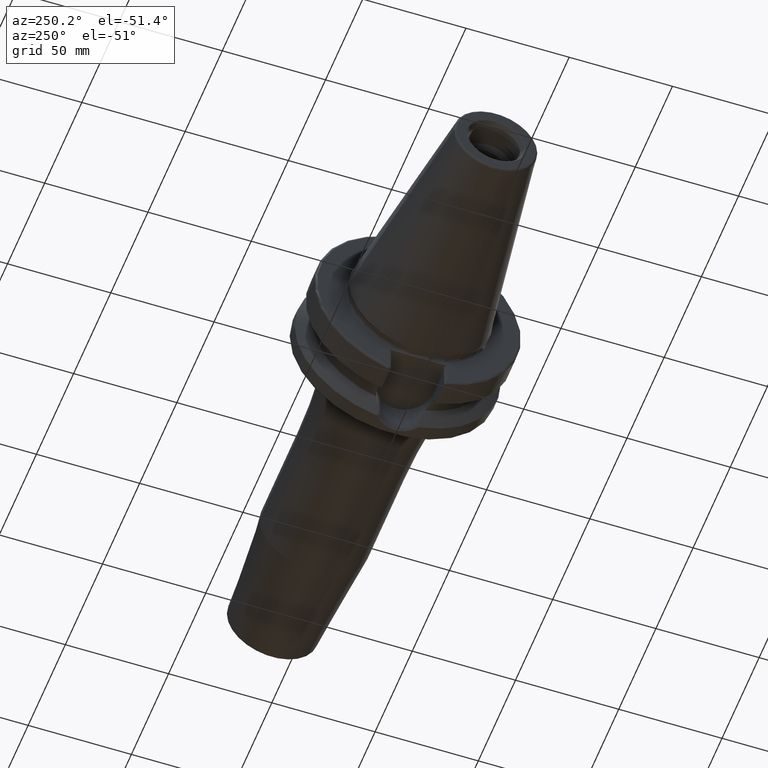
[diagram: clean part render]
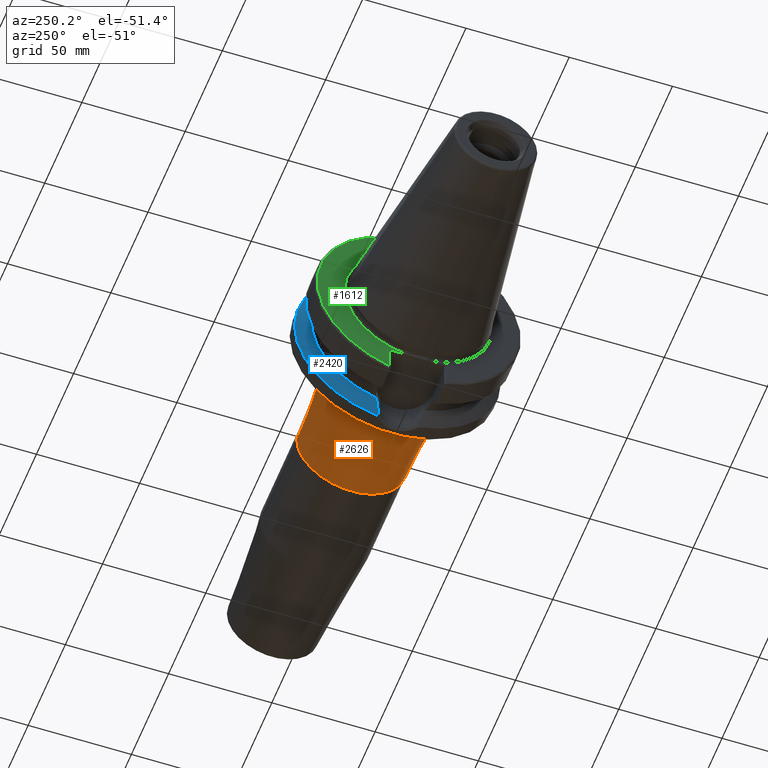
[diagram: same view with three faces highlighted in distinct colors, each labeled with its STEP entity id]
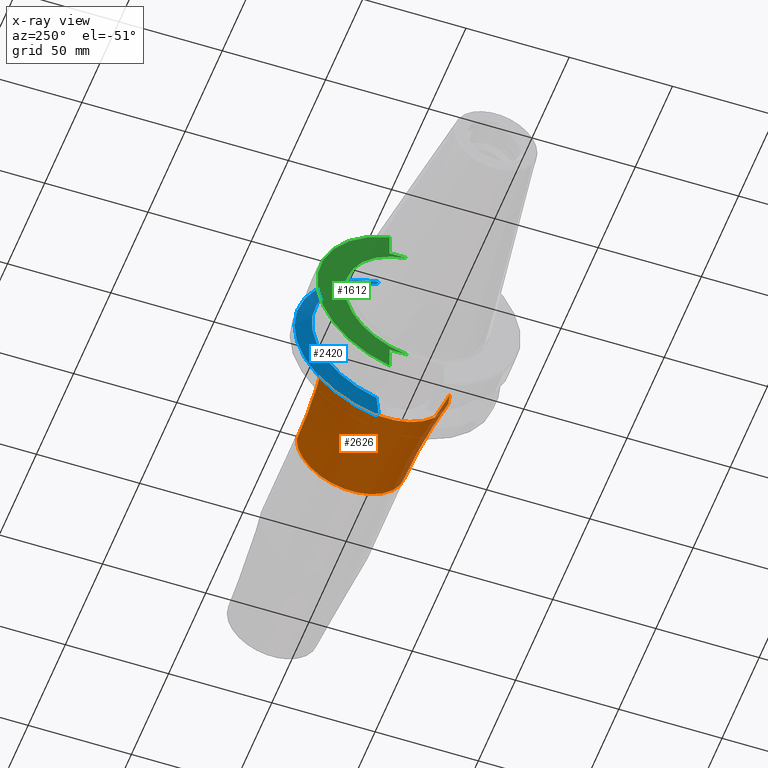
[diagram: x-ray of the same camera — body ghosted, the three highlighted faces saturated]
A machine part, auxiliary view with three faces highlighted in distinct colors.
The next image is the same camera in x-ray (body ghosted, the three faces saturated) — at least one of them is partly hidden behind the body in this view.
Their STEP definitions:

[orange] entity #2626 — the highlighted toroidal blend (fillet) surface has major radius 326.5 mm and minor (blend) radius 300 mm.
#859=CARTESIAN_POINT('',(4.471232876712E1,0.E0,0.E0));
#860=DIRECTION('',(1.E0,0.E0,0.E0));
#861=DIRECTION('',(0.E0,-1.E0,0.E0));
#862=AXIS2_PLACEMENT_3D('',#859,#860,#861);
#864=CARTESIAN_POINT('',(9.3E1,-3.265E2,-7.996943598432E-14));
#865=DIRECTION('',(0.E0,0.E0,1.E0));
#866=DIRECTION('',(0.E0,1.E0,0.E0));
#867=AXIS2_PLACEMENT_3D('',#864,#865,#866);
#869=CARTESIAN_POINT('',(9.3E1,3.265E2,3.998471799216E-14));
#870=DIRECTION('',(0.E0,0.E0,-1.E0));
#871=DIRECTION('',(0.E0,-1.E0,0.E0));
#872=AXIS2_PLACEMENT_3D('',#869,#870,#871);
#874=CARTESIAN_POINT('',(9.3E1,0.E0,0.E0));
#875=DIRECTION('',(1.E0,0.E0,0.E0));
#876=DIRECTION('',(0.E0,-1.E0,0.E0));
#877=AXIS2_PLACEMENT_3D('',#874,#875,#876);
#1435=CARTESIAN_POINT('',(4.471232876712E1,-3.041166722259E1,0.E0));
#1436=CARTESIAN_POINT('',(4.471232876712E1,3.041166722259E1,0.E0));
#1437=VERTEX_POINT('',#1435);
#1438=VERTEX_POINT('',#1436);
#1439=CARTESIAN_POINT('',(9.3E1,2.65E1,0.E0));
#1440=VERTEX_POINT('',#1439);
#1441=CARTESIAN_POINT('',(9.3E1,-2.65E1,0.E0));
#1442=VERTEX_POINT('',#1441);
#2614=CARTESIAN_POINT('',(9.3E1,0.E0,0.E0));
#2615=DIRECTION('',(1.E0,0.E0,0.E0));
#2616=DIRECTION('',(0.E0,-1.E0,0.E0));
#2617=AXIS2_PLACEMENT_3D('',#2614,#2615,#2616);
#2618=TOROIDAL_SURFACE('',#2617,3.265E2,3.E2);
#2619=ORIENTED_EDGE('',*,*,#2579,.F.);
#2620=ORIENTED_EDGE('',*,*,#2609,.F.);
#2622=ORIENTED_EDGE('',*,*,#2621,.T.);
#2623=ORIENTED_EDGE('',*,*,#2605,.T.);
#2624=EDGE_LOOP('',(#2619,#2620,#2622,#2623));
#2625=FACE_OUTER_BOUND('',#2624,.F.);
#2626=ADVANCED_FACE('',(#2625),#2618,.F.);
#863=CIRCLE('',#862,3.041166722259E1);
#868=CIRCLE('',#867,3.E2);
#873=CIRCLE('',#872,3.E2);
#878=CIRCLE('',#877,2.65E1);
#2579=EDGE_CURVE('',#1437,#1438,#863,.T.);
#2605=EDGE_CURVE('',#1440,#1438,#873,.T.);
#2609=EDGE_CURVE('',#1442,#1437,#868,.T.);
#2621=EDGE_CURVE('',#1442,#1440,#878,.T.);

[blue] entity #2420 — the highlighted conical surface has half-angle 60 deg.
#263=CARTESIAN_POINT('',(3.073066823617E1,0.E0,0.E0));
#264=DIRECTION('',(1.E0,0.E0,0.E0));
#265=DIRECTION('',(0.E0,2.049238320147E-1,-9.787779232657E-1));
#266=AXIS2_PLACEMENT_3D('',#263,#264,#265);
#415=CARTESIAN_POINT('',(2.67375E1,1.172273032403E1,-4.144514217760E1));
#416=CARTESIAN_POINT('',(2.717755273188E1,1.152039825981E1,-4.229446795287E1));
#417=CARTESIAN_POINT('',(2.801804260532E1,1.107404406164E1,-4.392046244152E1));
#418=CARTESIAN_POINT('',(2.916093120674E1,1.029757215552E1,-4.613906421021E1));
#419=CARTESIAN_POINT('',(2.984177307163E1,9.721843848552E0,-4.746425084782E1));
#420=CARTESIAN_POINT('',(3.016210355788E1,9.422169090361E0,-4.808834590435E1));
#485=CARTESIAN_POINT('',(3.006745596523E1,9.509830398822E0,4.790396451831E1));
#486=CARTESIAN_POINT('',(2.975376574683E1,9.797465906135E0,4.729293338983E1));
#487=CARTESIAN_POINT('',(2.908879078217E1,1.035010846105E1,4.599889189585E1));
#488=CARTESIAN_POINT('',(2.797778721927E1,1.109635283633E1,4.384252820130E1));
#489=CARTESIAN_POINT('',(2.716331106798E1,1.152694644153E1,4.226698076473E1));
#490=CARTESIAN_POINT('',(2.67375E1,1.172273032403E1,4.144514217760E1));
#758=CARTESIAN_POINT('',(2.67375E1,0.E0,0.E0));
#759=DIRECTION('',(-1.E0,0.E0,0.E0));
#760=DIRECTION('',(0.E0,2.721714149834E-1,9.622487832499E-1));
#761=AXIS2_PLACEMENT_3D('',#758,#759,#760);
#775=CARTESIAN_POINT('',(3.016210355788E1,9.422169090361E0,-4.808834590435E1));
#776=CARTESIAN_POINT('',(3.022394586618E1,9.512142137117E0,-4.817986780383E1));
#777=CARTESIAN_POINT('',(3.034851502566E1,9.692953240337E0,-4.836399151813E1));
#778=CARTESIAN_POINT('',(3.053803725886E1,9.966778365933E0,-4.864343348084E1));
#779=CARTESIAN_POINT('',(3.066616050581E1,1.015105667945E1,-4.883189001679E1));
#780=CARTESIAN_POINT('',(3.073066823617E1,1.024363005283E1,-4.892666143925E1));
#782=CARTESIAN_POINT('',(3.073066823617E1,0.E0,0.E0));
#783=DIRECTION('',(1.E0,0.E0,0.E0));
#784=DIRECTION('',(0.E0,1.E0,0.E0));
#785=AXIS2_PLACEMENT_3D('',#782,#783,#784);
#968=CARTESIAN_POINT('',(3.073066823617E1,1.046765017837E1,4.887922315251E1));
#969=CARTESIAN_POINT('',(3.065516473864E1,1.035946447073E1,4.876865040800E1));
#970=CARTESIAN_POINT('',(3.050537106240E1,1.014427039488E1,4.854898287946E1));
#971=CARTESIAN_POINT('',(3.028429900742E1,9.824990065200E0,4.822389090934E1));
#972=CARTESIAN_POINT('',(3.013933640756E1,9.614493300520E0,4.801011711517E1));
#973=CARTESIAN_POINT('',(3.006745596523E1,9.509830398822E0,4.790396451831E1));
#1228=CARTESIAN_POINT('',(2.67375E1,1.172273032403E1,4.144514217760E1));
#1229=CARTESIAN_POINT('',(2.67375E1,1.172273032403E1,-4.144514217760E1));
#1230=VERTEX_POINT('',#1228);
#1231=VERTEX_POINT('',#1229);
#1244=CARTESIAN_POINT('',(3.073066823617E1,4.99875E1,0.E0));
#1245=CARTESIAN_POINT('',(3.073066823617E1,1.046765017837E1,4.887922315251E1));
#1246=VERTEX_POINT('',#1244);
#1247=VERTEX_POINT('',#1245);
#1258=CARTESIAN_POINT('',(3.073066823617E1,1.024363005283E1,-4.892666143925E1));
#1259=VERTEX_POINT('',#1258);
#1349=VERTEX_POINT('',#485);
#1357=VERTEX_POINT('',#420);
#2403=CARTESIAN_POINT('',(2.873408411809E1,0.E0,0.E0));
#2404=DIRECTION('',(1.E0,0.E0,0.E0));
#2405=DIRECTION('',(0.E0,-1.E0,0.E0));
#2406=AXIS2_PLACEMENT_3D('',#2403,#2404,#2405);
#2407=CONICAL_SURFACE('',#2406,4.652931486589E1,6.E1);
#2408=ORIENTED_EDGE('',*,*,#1929,.T.);
#2409=ORIENTED_EDGE('',*,*,#1904,.T.);
#2411=ORIENTED_EDGE('',*,*,#2410,.T.);
#2412=ORIENTED_EDGE('',*,*,#1785,.T.);
#2414=ORIENTED_EDGE('',*,*,#2413,.T.);
#2416=ORIENTED_EDGE('',*,*,#2415,.T.);
#2417=ORIENTED_EDGE('',*,*,#1992,.T.);
#2418=EDGE_LOOP('',(#2408,#2409,#2411,#2412,#2414,#2416,#2417));
#2419=FACE_OUTER_BOUND('',#2418,.F.);
#2420=ADVANCED_FACE('',(#2419),#2407,.T.);
#267=CIRCLE('',#266,4.99875E1);
#421=B_SPLINE_CURVE_WITH_KNOTS('',3,(#415,#416,#417,#418,#419,#420),
.UNSPECIFIED.,.F.,.F.,(4,1,1,4),(0.E0,3.333333333333E-1,6.666666666667E-1,1.E0),
.UNSPECIFIED.);
#491=B_SPLINE_CURVE_WITH_KNOTS('',3,(#485,#486,#487,#488,#489,#490),
.UNSPECIFIED.,.F.,.F.,(4,1,1,4),(0.E0,3.333333333333E-1,6.666666666667E-1,1.E0),
.UNSPECIFIED.);
#762=CIRCLE('',#761,4.307112973177E1);
#781=B_SPLINE_CURVE_WITH_KNOTS('',3,(#775,#776,#777,#778,#779,#780),
.UNSPECIFIED.,.F.,.F.,(4,1,1,4),(0.E0,3.333333333333E-1,6.666666666667E-1,1.E0),
.UNSPECIFIED.);
#786=CIRCLE('',#785,4.99875E1);
#974=B_SPLINE_CURVE_WITH_KNOTS('',3,(#968,#969,#970,#971,#972,#973),
.UNSPECIFIED.,.F.,.F.,(4,1,1,4),(0.E0,3.333333333333E-1,6.666666666667E-1,1.E0),
.UNSPECIFIED.);
#1785=EDGE_CURVE('',#1259,#1246,#267,.T.);
#1904=EDGE_CURVE('',#1231,#1357,#421,.T.);
#1929=EDGE_CURVE('',#1230,#1231,#762,.T.);
#1992=EDGE_CURVE('',#1349,#1230,#491,.T.);
#2410=EDGE_CURVE('',#1357,#1259,#781,.T.);
#2413=EDGE_CURVE('',#1246,#1247,#786,.T.);
#2415=EDGE_CURVE('',#1247,#1349,#974,.T.);

[green] entity #1612 — the highlighted planar face has unit normal (1, 0, 0).
#96=CARTESIAN_POINT('',(3.E0,0.E0,0.E0));
#97=DIRECTION('',(-1.E0,0.E0,0.E0));
#98=DIRECTION('',(0.E0,1.E0,0.E0));
#99=AXIS2_PLACEMENT_3D('',#96,#97,#98);
#127=DIRECTION('',(5.798787724366E-7,5.799135248072E-7,9.999999999997E-1));
#128=VECTOR('',#127,1.177335004622E1);
#129=CARTESIAN_POINT('',(2.999993172884E0,1.390249317248E1,-4.697335004621E1));
#130=LINE('',#129,#128);
#131=DIRECTION('',(-1.226013541637E-6,-1.226161370240E-6,9.999999999985E-1));
#132=VECTOR('',#131,1.177335390080E1);
#133=CARTESIAN_POINT('',(3.E0,1.39025E1,3.52E1));
#134=LINE('',#133,#132);
#588=CARTESIAN_POINT('',(3.E0,0.E0,0.E0));
#589=DIRECTION('',(-1.E0,0.E0,0.E0));
#590=DIRECTION('',(0.E0,2.837969049058E-1,9.588844126201E-1));
#591=AXIS2_PLACEMENT_3D('',#588,#589,#590);
#683=DIRECTION('',(0.E0,1.E0,0.E0));
#684=VECTOR('',#683,8.750740591798E0);
#685=CARTESIAN_POINT('',(3.E0,5.151759408202E0,3.52E1));
#686=LINE('',#685,#684);
#704=CARTESIAN_POINT('',(3.E0,0.E0,0.E0));
#705=DIRECTION('',(1.E0,0.E0,0.E0));
#706=DIRECTION('',(0.E0,1.E0,0.E0));
#707=AXIS2_PLACEMENT_3D('',#704,#705,#706);
#741=DIRECTION('',(0.E0,-1.E0,0.E0));
#742=VECTOR('',#741,8.750740591798E0);
#743=CARTESIAN_POINT('',(3.E0,1.39025E1,-3.52E1));
#744=LINE('',#743,#742);
#1260=CARTESIAN_POINT('',(3.E0,3.5575E1,0.E0));
#1262=VERTEX_POINT('',#1260);
#1330=CARTESIAN_POINT('',(3.E0,5.151759408202E0,3.52E1));
#1331=VERTEX_POINT('',#1330);
#1338=CARTESIAN_POINT('',(3.E0,5.151759408202E0,-3.52E1));
#1339=VERTEX_POINT('',#1338);
#1376=CARTESIAN_POINT('',(3.E0,1.390251954398E1,4.697334463905E1));
#1378=VERTEX_POINT('',#1376);
#1380=CARTESIAN_POINT('',(3.E0,1.39025E1,3.52E1));
#1381=VERTEX_POINT('',#1380);
#1390=CARTESIAN_POINT('',(2.999993172884E0,1.390249317248E1,-4.697335004621E1));
#1391=CARTESIAN_POINT('',(3.E0,1.39025E1,-3.52E1));
#1392=VERTEX_POINT('',#1390);
#1393=VERTEX_POINT('',#1391);
#1592=CARTESIAN_POINT('',(3.E0,0.E0,0.E0));
#1593=DIRECTION('',(1.E0,0.E0,0.E0));
#1594=DIRECTION('',(0.E0,-1.E0,0.E0));
#1595=AXIS2_PLACEMENT_3D('',#1592,#1593,#1594);
#1596=PLANE('',#1595);
#1598=ORIENTED_EDGE('',*,*,#1597,.F.);
#1600=ORIENTED_EDGE('',*,*,#1599,.F.);
#1602=ORIENTED_EDGE('',*,*,#1601,.F.);
#1604=ORIENTED_EDGE('',*,*,#1603,.F.);
#1606=ORIENTED_EDGE('',*,*,#1605,.F.);
#1607=ORIENTED_EDGE('',*,*,#1578,.T.);
#1609=ORIENTED_EDGE('',*,*,#1608,.F.);
#1610=EDGE_LOOP('',(#1598,#1600,#1602,#1604,#1606,#1607,#1609));
#1611=FACE_OUTER_BOUND('',#1610,.F.);
#1612=ADVANCED_FACE('',(#1611),#1596,.F.);
#100=CIRCLE('',#99,3.5575E1);
#592=CIRCLE('',#591,4.89875E1);
#708=CIRCLE('',#707,3.5575E1);
#1578=EDGE_CURVE('',#1262,#1339,#100,.T.);
#1597=EDGE_CURVE('',#1392,#1393,#130,.T.);
#1599=EDGE_CURVE('',#1378,#1392,#592,.T.);
#1601=EDGE_CURVE('',#1381,#1378,#134,.T.);
#1603=EDGE_CURVE('',#1331,#1381,#686,.T.);
#1605=EDGE_CURVE('',#1262,#1331,#708,.T.);
#1608=EDGE_CURVE('',#1393,#1339,#744,.T.);